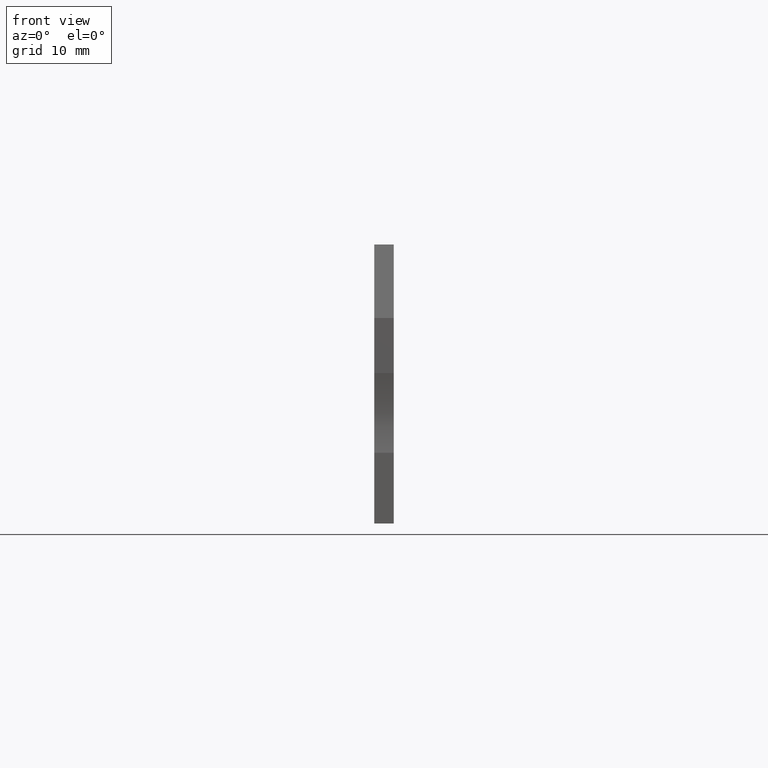
[diagram: clean part render]
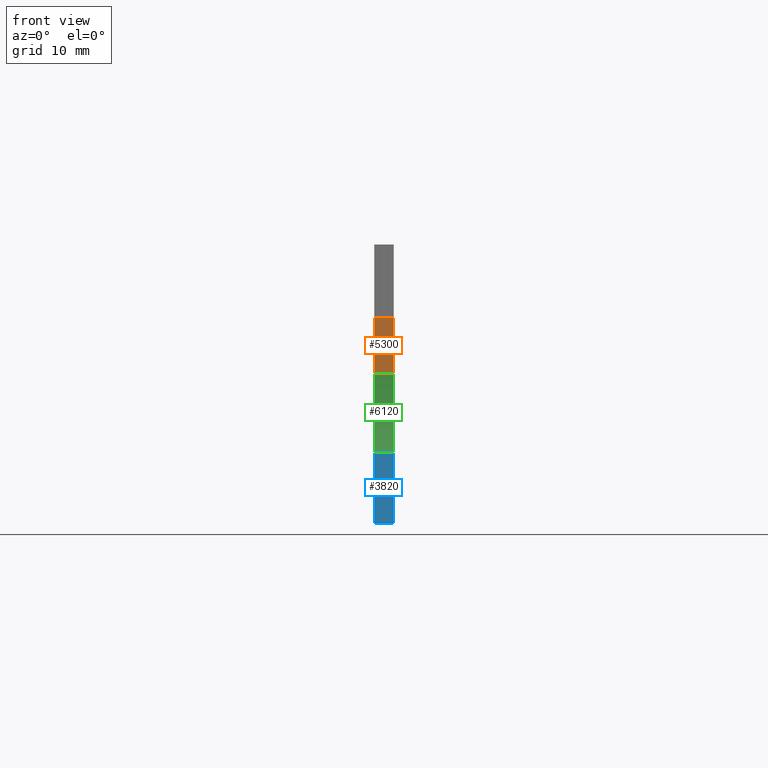
[diagram: same view with three faces highlighted in distinct colors, each labeled with its STEP entity id]
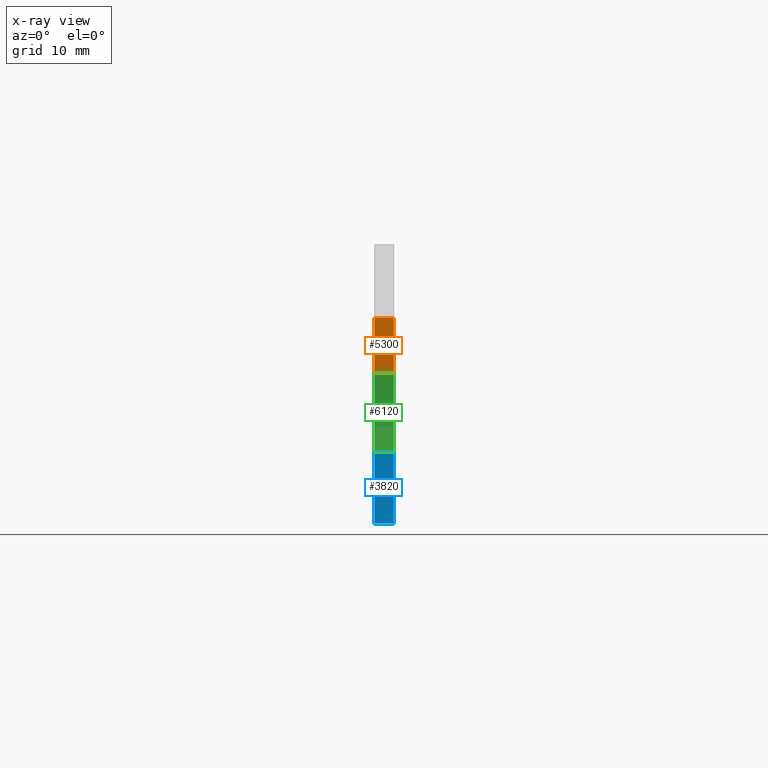
[diagram: x-ray of the same camera — body ghosted, the three highlighted faces saturated]
A machine part, front view with three faces highlighted in distinct colors.
The next image is the same camera in x-ray (body ghosted, the three faces saturated) — at least one of them is partly hidden behind the body in this view.
Their STEP definitions:

[orange] entity #5300 — the highlighted planar face has unit normal (-0, -1, 0).
#4370=CARTESIAN_POINT('',(8.72968082469053,-14.9655444566315,
2.19999999999843));
#4380=VERTEX_POINT('',#4370);
#4800=CARTESIAN_POINT('',(8.72968082469053,-21.2000000000056,
2.19999999999841));
#4810=VERTEX_POINT('',#4800);
#4840=CARTESIAN_POINT('',(8.72968082469053,-33.886127,2.19999999999837))
;
#4850=DIRECTION('',(0.,1.,3.03161873061274E-15));
#4860=VECTOR('',#4850,1.);
#4870=LINE('',#4840,#4860);
#4880=EDGE_CURVE('',#4810,#4380,#4870,.T.);
#5000=CARTESIAN_POINT('',(8.72968082469053,-14.9655444566315,
2.19999999999997));
#5010=DIRECTION('',(-1.,0.,0.));
#5020=DIRECTION('',(0.,1.,0.));
#5030=AXIS2_PLACEMENT_3D('',#5000,#5010,#5020);
#5040=PLANE('',#5030);
#5050=ORIENTED_EDGE('',*,*,#4880,.T.);
#5060=CARTESIAN_POINT('',(8.72968082469053,-21.2000000000055,
2.19999999999997));
#5070=DIRECTION('',(0.,0.,-1.));
#5080=VECTOR('',#5070,1.);
#5090=LINE('',#5060,#5080);
#5100=CARTESIAN_POINT('',(8.72968082469053,-21.2000000000056,
-3.68594044175552E-14));
#5110=VERTEX_POINT('',#5100);
#5120=EDGE_CURVE('',#4810,#5110,#5090,.T.);
#5130=ORIENTED_EDGE('',*,*,#5120,.F.);
#5140=CARTESIAN_POINT('',(8.72968082469053,-33.886127,
-3.68594044175552E-14));
#5150=DIRECTION('',(0.,-1.,0.));
#5160=VECTOR('',#5150,1.);
#5170=LINE('',#5140,#5160);
#5180=CARTESIAN_POINT('',(8.72968082469053,-14.9655444566315,
-3.68594044175552E-14));
#5190=VERTEX_POINT('',#5180);
#5200=EDGE_CURVE('',#5190,#5110,#5170,.T.);
#5210=ORIENTED_EDGE('',*,*,#5200,.T.);
#5220=CARTESIAN_POINT('',(8.72968082469053,-14.9655444566315,
-2.8421709430404E-14));
#5230=DIRECTION('',(0.,0.,1.));
#5240=VECTOR('',#5230,1.);
#5250=LINE('',#5220,#5240);
#5260=EDGE_CURVE('',#5190,#4380,#5250,.T.);
#5270=ORIENTED_EDGE('',*,*,#5260,.F.);
#5280=EDGE_LOOP('',(#5270,#5210,#5130,#5050));
#5290=FACE_OUTER_BOUND('',#5280,.T.);
#5300=ADVANCED_FACE('',(#5290),#5040,.T.);

[blue] entity #3820 — the highlighted planar face has unit normal (-0, -1, 0).
#3430=CARTESIAN_POINT('',(8.72968082469054,-30.4972542058032,
2.19999999999997));
#3440=DIRECTION('',(-1.,0.,0.));
#3450=DIRECTION('',(0.,1.,0.));
#3460=AXIS2_PLACEMENT_3D('',#3430,#3440,#3450);
#3470=PLANE('',#3460);
#3480=CARTESIAN_POINT('',(8.72968082469054,-33.886127,2.19999999999837))
;
#3490=DIRECTION('',(0.,1.,3.03161873061274E-15));
#3500=VECTOR('',#3490,1.);
#3510=LINE('',#3480,#3500);
#3520=CARTESIAN_POINT('',(8.72968082469054,-38.2000000000014,
2.19999999999836));
#3530=VERTEX_POINT('',#3520);
#3540=CARTESIAN_POINT('',(8.72968082469054,-30.2000000000115,
2.19999999999838));
#3550=VERTEX_POINT('',#3540);
#3560=EDGE_CURVE('',#3530,#3550,#3510,.T.);
#3570=ORIENTED_EDGE('',*,*,#3560,.T.);
#3580=CARTESIAN_POINT('',(8.72968082469054,-38.2000000000014,
-2.8421709430404E-14));
#3590=DIRECTION('',(0.,0.,-1.));
#3600=VECTOR('',#3590,1.);
#3610=LINE('',#3580,#3600);
#3620=CARTESIAN_POINT('',(8.72968082469054,-38.2000000000014,
-3.68594044175552E-14));
#3630=VERTEX_POINT('',#3620);
#3640=EDGE_CURVE('',#3530,#3630,#3610,.T.);
#3650=ORIENTED_EDGE('',*,*,#3640,.F.);
#3660=CARTESIAN_POINT('',(8.72968082469054,-33.886127,
-3.68594044175552E-14));
#3670=DIRECTION('',(0.,-1.,0.));
#3680=VECTOR('',#3670,1.);
#3690=LINE('',#3660,#3680);
#3700=CARTESIAN_POINT('',(8.72968082469054,-30.2000000000115,
-3.68594044175552E-14));
#3710=VERTEX_POINT('',#3700);
#3720=EDGE_CURVE('',#3710,#3630,#3690,.T.);
#3730=ORIENTED_EDGE('',*,*,#3720,.T.);
#3740=CARTESIAN_POINT('',(8.72968082469054,-30.2000000000115,
2.19999999999997));
#3750=DIRECTION('',(0.,0.,1.));
#3760=VECTOR('',#3750,1.);
#3770=LINE('',#3740,#3760);
#3780=EDGE_CURVE('',#3710,#3550,#3770,.T.);
#3790=ORIENTED_EDGE('',*,*,#3780,.F.);
#3800=EDGE_LOOP('',(#3790,#3730,#3650,#3570));
#3810=FACE_OUTER_BOUND('',#3800,.T.);
#3820=ADVANCED_FACE('',(#3810),#3470,.T.);

[green] entity #6120 — the highlighted cylindrical surface (partial cylindrical patch) has radius 15 mm, axis along (1, -0, 0).
#3540=CARTESIAN_POINT('',(8.72968082469054,-30.2000000000115,
2.19999999999838));
#3550=VERTEX_POINT('',#3540);
#3700=CARTESIAN_POINT('',(8.72968082469054,-30.2000000000115,
-3.68594044175552E-14));
#3710=VERTEX_POINT('',#3700);
#3740=CARTESIAN_POINT('',(8.72968082469054,-30.2000000000115,
2.19999999999997));
#3750=DIRECTION('',(0.,0.,1.));
#3760=VECTOR('',#3750,1.);
#3770=LINE('',#3740,#3760);
#3780=EDGE_CURVE('',#3710,#3550,#3770,.T.);
#4750=CARTESIAN_POINT('',(-5.57940719656269,-25.7000000000085,
2.19999999999839));
#4760=DIRECTION('',(0.,0.,1.));
#4770=DIRECTION('',(1.,0.,0.));
#4780=AXIS2_PLACEMENT_3D('',#4750,#4760,#4770);
#4790=CIRCLE('',#4780,15.);
#4800=CARTESIAN_POINT('',(8.72968082469053,-21.2000000000056,
2.19999999999841));
#4810=VERTEX_POINT('',#4800);
#4820=EDGE_CURVE('',#3550,#4810,#4790,.T.);
#5060=CARTESIAN_POINT('',(8.72968082469053,-21.2000000000055,
2.19999999999997));
#5070=DIRECTION('',(0.,0.,-1.));
#5080=VECTOR('',#5070,1.);
#5090=LINE('',#5060,#5080);
#5100=CARTESIAN_POINT('',(8.72968082469053,-21.2000000000056,
-3.68594044175552E-14));
#5110=VERTEX_POINT('',#5100);
#5120=EDGE_CURVE('',#4810,#5110,#5090,.T.);
#5440=CARTESIAN_POINT('',(-5.57940719656269,-25.7000000000085,
-3.68594044175552E-14));
#5450=DIRECTION('',(0.,0.,1.));
#5460=DIRECTION('',(1.,0.,0.));
#5470=AXIS2_PLACEMENT_3D('',#5440,#5450,#5460);
#5480=CIRCLE('',#5470,15.);
#5490=EDGE_CURVE('',#3710,#5110,#5480,.T.);
#6010=CARTESIAN_POINT('',(-5.57940719656269,-25.7000000000085,
2.19999999999997));
#6020=DIRECTION('',(0.,0.,1.));
#6030=DIRECTION('',(1.,0.,0.));
#6040=AXIS2_PLACEMENT_3D('',#6010,#6020,#6030);
#6050=CYLINDRICAL_SURFACE('',#6040,15.);
#6060=ORIENTED_EDGE('',*,*,#5120,.T.);
#6070=ORIENTED_EDGE('',*,*,#4820,.T.);
#6080=ORIENTED_EDGE('',*,*,#3780,.T.);
#6090=ORIENTED_EDGE('',*,*,#5490,.F.);
#6100=EDGE_LOOP('',(#6090,#6080,#6070,#6060));
#6110=FACE_OUTER_BOUND('',#6100,.T.);
#6120=ADVANCED_FACE('',(#6110),#6050,.F.);